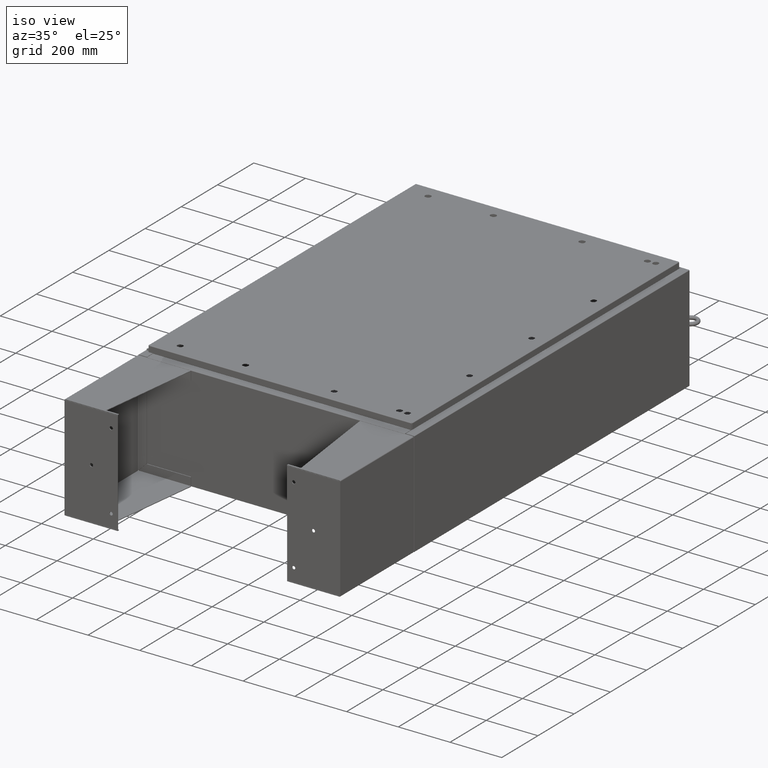
[diagram: clean part render]
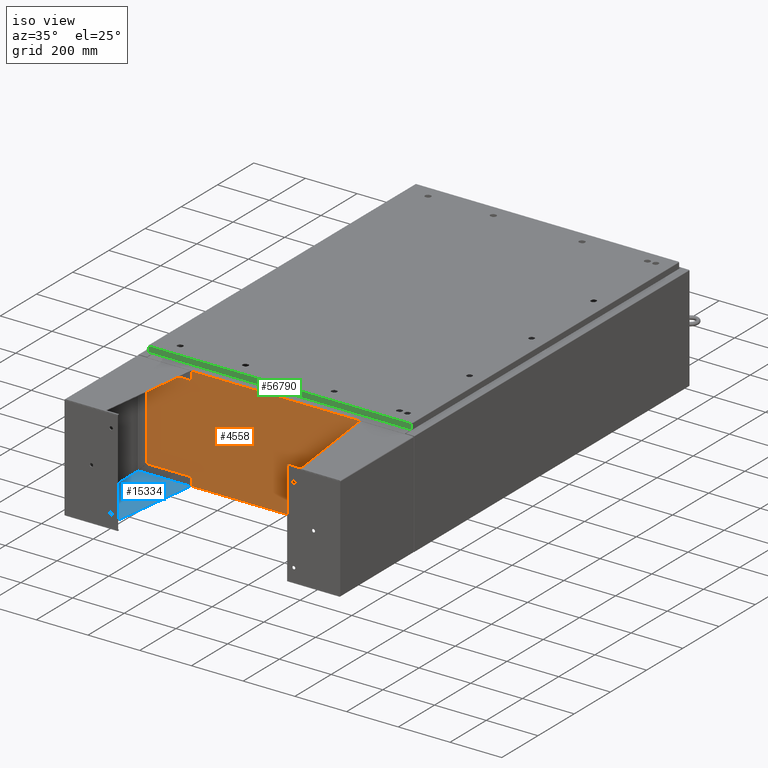
[diagram: same view with three faces highlighted in distinct colors, each labeled with its STEP entity id]
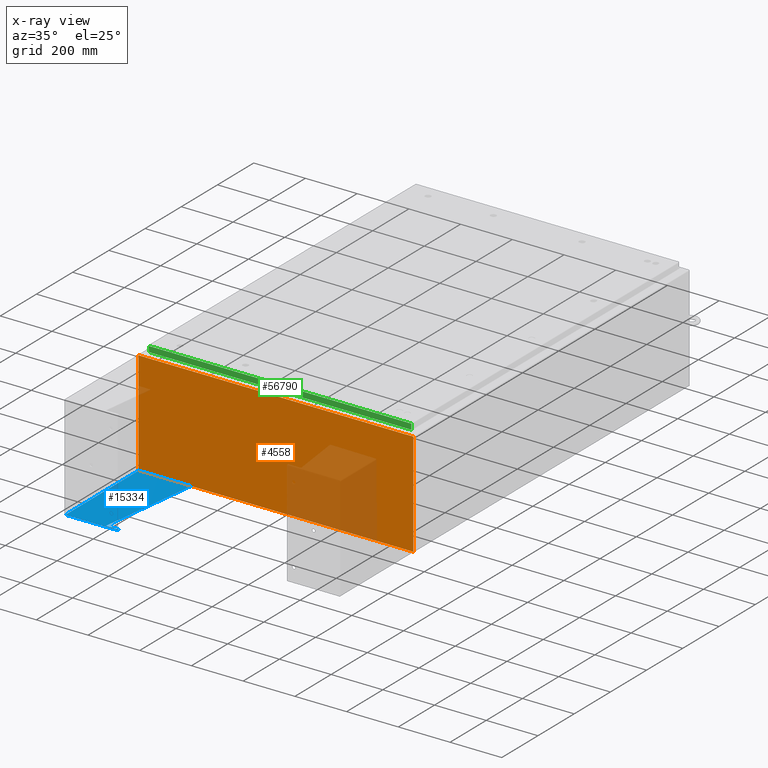
[diagram: x-ray of the same camera — body ghosted, the three highlighted faces saturated]
A machine part, iso view with three faces highlighted in distinct colors.
The next image is the same camera in x-ray (body ghosted, the three faces saturated) — at least one of them is partly hidden behind the body in this view.
Their STEP definitions:

[orange] entity #4558 — the highlighted planar face has unit normal (-0, 1, -0).
#635 = VERTEX_POINT ( 'NONE', #49091 ) ;
#676 = CARTESIAN_POINT ( 'NONE',  ( -19.67455000000000400, 0.0000000000000000000, 7.925300000000001800 ) ) ;
#843 = LINE ( 'NONE', #21098, #52582 ) ;
#2408 = VERTEX_POINT ( 'NONE', #6187 ) ;
#3503 = EDGE_CURVE ( 'NONE', #2408, #59213, #843, .T. ) ;
#3987 = PLANE ( 'NONE',  #25245 ) ;
#4558 = ADVANCED_FACE ( 'NONE', ( #53187 ), #3987, .F. ) ;
#4696 = VERTEX_POINT ( 'NONE', #27846 ) ;
#5703 = DIRECTION ( 'NONE',  ( 1.000000000000000000, 0.0000000000000000000, -2.611047864225854000E-017 ) ) ;
#6187 = CARTESIAN_POINT ( 'NONE',  ( 19.67454999999998200, 0.0000000000000000000, 7.925300000000000900 ) ) ;
#6221 = EDGE_LOOP ( 'NONE', ( #33745, #45854, #34975, #47117, #20581, #32010, #10720, #10058, #54928, #59012, #46620, #35428 ) ) ;
#6454 = LINE ( 'NONE', #39146, #56666 ) ;
#6976 = DIRECTION ( 'NONE',  ( 4.340572780400098900E-014, 0.0000000000000000000, -1.000000000000000000 ) ) ;
#7553 = VERTEX_POINT ( 'NONE', #51244 ) ;
#8736 = CARTESIAN_POINT ( 'NONE',  ( 19.65587500000000500, 0.0000000000000000000, 7.874950000000001900 ) ) ;
#9817 = VERTEX_POINT ( 'NONE', #18366 ) ;
#10058 = ORIENTED_EDGE ( 'NONE', *, *, #46426, .T. ) ;
#10181 = EDGE_CURVE ( 'NONE', #4696, #37534, #6454, .T. ) ;
#10720 = ORIENTED_EDGE ( 'NONE', *, *, #3503, .F. ) ;
#10888 = CARTESIAN_POINT ( 'NONE',  ( -20.92530000000000400, 0.0000000000000000000, 7.925300000000001800 ) ) ;
#11082 = EDGE_CURVE ( 'NONE', #33250, #37534, #61111, .T. ) ;
#11837 = DIRECTION ( 'NONE',  ( 0.0000000000000000000, -0.0000000000000000000, -1.000000000000000000 ) ) ;
#12970 = EDGE_CURVE ( 'NONE', #635, #54100, #31905, .T. ) ;
#13600 = DIRECTION ( 'NONE',  ( 0.0000000000000000000, 0.0000000000000000000, -1.000000000000000000 ) ) ;
#13701 = CARTESIAN_POINT ( 'NONE',  ( 19.63720000000000400, 0.0000000000000000000, 0.0000000000000000000 ) ) ;
#15807 = EDGE_CURVE ( 'NONE', #41809, #7553, #54767, .T. ) ;
#16029 = CARTESIAN_POINT ( 'NONE',  ( 19.67455000000000400, 0.0000000000000000000, 7.874950000000001900 ) ) ;
#18015 = CARTESIAN_POINT ( 'NONE',  ( 20.92530000000000400, 0.0000000000000000000, 7.925300000000000900 ) ) ;
#18366 = CARTESIAN_POINT ( 'NONE',  ( -20.92530000000000400, 0.0000000000000000000, -7.925299999999997300 ) ) ;
#19823 = DIRECTION ( 'NONE',  ( 0.0000000000000000000, -1.000000000000000000, 0.0000000000000000000 ) ) ;
#20581 = ORIENTED_EDGE ( 'NONE', *, *, #23422, .F. ) ;
#20619 = DIRECTION ( 'NONE',  ( -0.0000000000000000000, -0.0000000000000000000, 1.000000000000000000 ) ) ;
#21098 = CARTESIAN_POINT ( 'NONE',  ( 19.67455000000034500, 0.0000000000000000000, 8.539881619662225600E-013 ) ) ;
#21289 = VERTEX_POINT ( 'NONE', #48877 ) ;
#21606 = CARTESIAN_POINT ( 'NONE',  ( 20.92530000000000400, 0.0000000000000000000, 7.925300000000000900 ) ) ;
#21850 = LINE ( 'NONE', #33130, #59189 ) ;
#22259 = VECTOR ( 'NONE', #26811, 39.37007874015748100 ) ;
#23422 = EDGE_CURVE ( 'NONE', #60344, #54100, #50509, .T. ) ;
#24742 = VECTOR ( 'NONE', #20619, 39.37007874015748100 ) ;
#24987 = CARTESIAN_POINT ( 'NONE',  ( -19.63720000000000400, -7.171100983368691200E-016, 7.912300000000001900 ) ) ;
#25245 = AXIS2_PLACEMENT_3D ( 'NONE', #48310, #19823, #11837 ) ;
#26811 = DIRECTION ( 'NONE',  ( 0.0000000000000000000, 0.0000000000000000000, 1.000000000000000000 ) ) ;
#27045 = EDGE_CURVE ( 'NONE', #21289, #33250, #42506, .T. ) ;
#27846 = CARTESIAN_POINT ( 'NONE',  ( -20.92530000000000400, 0.0000000000000000000, 7.925300000000001800 ) ) ;
#28000 = DIRECTION ( 'NONE',  ( -0.0000000000000000000, 1.000000000000000000, -0.0000000000000000000 ) ) ;
#28368 = CARTESIAN_POINT ( 'NONE',  ( 19.63720000000000400, 0.0000000000000000000, 7.912300000000001900 ) ) ;
#28908 = AXIS2_PLACEMENT_3D ( 'NONE', #57213, #28000, #62094 ) ;
#30147 = CARTESIAN_POINT ( 'NONE',  ( -20.92530000000000400, 0.0000000000000000000, -7.925299999999997300 ) ) ;
#30923 = EDGE_CURVE ( 'NONE', #7553, #9817, #60137, .T. ) ;
#31905 = LINE ( 'NONE', #24987, #33565 ) ;
#32010 = ORIENTED_EDGE ( 'NONE', *, *, #40624, .F. ) ;
#33130 = CARTESIAN_POINT ( 'NONE',  ( -19.63720000000000400, -0.0000000000000000000, 0.0000000000000000000 ) ) ;
#33250 = VERTEX_POINT ( 'NONE', #34976 ) ;
#33565 = VECTOR ( 'NONE', #41754, 39.37007874015748100 ) ;
#33745 = ORIENTED_EDGE ( 'NONE', *, *, #11082, .F. ) ;
#34975 = ORIENTED_EDGE ( 'NONE', *, *, #40649, .F. ) ;
#34976 = CARTESIAN_POINT ( 'NONE',  ( -19.67455000000000400, 0.0000000000000000000, 7.874950000000001900 ) ) ;
#35428 = ORIENTED_EDGE ( 'NONE', *, *, #10181, .T. ) ;
#37534 = VERTEX_POINT ( 'NONE', #676 ) ;
#37917 = DIRECTION ( 'NONE',  ( 0.0000000000000000000, 0.0000000000000000000, 1.000000000000000000 ) ) ;
#38032 = DIRECTION ( 'NONE',  ( 0.0000000000000000000, 0.0000000000000000000, -1.000000000000000000 ) ) ;
#39146 = CARTESIAN_POINT ( 'NONE',  ( -20.92530000000000400, 0.0000000000000000000, 7.925300000000001800 ) ) ;
#39434 = CARTESIAN_POINT ( 'NONE',  ( -20.92530000000000400, 0.0000000000000000000, 7.925300000000001800 ) ) ;
#40250 = VECTOR ( 'NONE', #53026, 39.37007874015748100 ) ;
#40624 = EDGE_CURVE ( 'NONE', #59213, #60344, #49274, .T. ) ;
#40649 = EDGE_CURVE ( 'NONE', #635, #21289, #21850, .T. ) ;
#41316 = CARTESIAN_POINT ( 'NONE',  ( -19.67455000000000400, -0.0000000000000000000, 0.0000000000000000000 ) ) ;
#41754 = DIRECTION ( 'NONE',  ( 1.000000000000000000, 0.0000000000000000000, 0.0000000000000000000 ) ) ;
#41809 = VERTEX_POINT ( 'NONE', #18015 ) ;
#42274 = LINE ( 'NONE', #10888, #24742 ) ;
#42506 = CIRCLE ( 'NONE', #28908, 0.01867499999999949400 ) ;
#42737 = DIRECTION ( 'NONE',  ( -0.0000000000000000000, 1.000000000000000000, -0.0000000000000000000 ) ) ;
#44055 = DIRECTION ( 'NONE',  ( 1.000000000000000000, 0.0000000000000000000, -2.611047864225854000E-017 ) ) ;
#44642 = CARTESIAN_POINT ( 'NONE',  ( 19.63720000000000400, 0.0000000000000000000, 7.874950000000001900 ) ) ;
#44844 = DIRECTION ( 'NONE',  ( -1.000000000000000000, -0.0000000000000000000, -0.0000000000000000000 ) ) ;
#45446 = VECTOR ( 'NONE', #5703, 39.37007874015748100 ) ;
#45657 = VECTOR ( 'NONE', #44844, 39.37007874015748100 ) ;
#45854 = ORIENTED_EDGE ( 'NONE', *, *, #27045, .F. ) ;
#46192 = AXIS2_PLACEMENT_3D ( 'NONE', #8736, #42737, #13600 ) ;
#46426 = EDGE_CURVE ( 'NONE', #2408, #41809, #58403, .T. ) ;
#46620 = ORIENTED_EDGE ( 'NONE', *, *, #48131, .T. ) ;
#47117 = ORIENTED_EDGE ( 'NONE', *, *, #12970, .T. ) ;
#48131 = EDGE_CURVE ( 'NONE', #9817, #4696, #42274, .T. ) ;
#48310 = CARTESIAN_POINT ( 'NONE',  ( 0.0000000000000000000, 0.0000000000000000000, 0.0000000000000000000 ) ) ;
#48877 = CARTESIAN_POINT ( 'NONE',  ( -19.63720000000000400, -0.0000000000000000000, 7.874950000000001900 ) ) ;
#49091 = CARTESIAN_POINT ( 'NONE',  ( -19.63720000000000400, -7.171100983368691200E-016, 7.912300000000001900 ) ) ;
#49274 = CIRCLE ( 'NONE', #46192, 0.01867499999999949400 ) ;
#50509 = LINE ( 'NONE', #13701, #52032 ) ;
#51244 = CARTESIAN_POINT ( 'NONE',  ( 20.92530000000000400, 0.0000000000000000000, -7.925299999999997300 ) ) ;
#52032 = VECTOR ( 'NONE', #37917, 39.37007874015748100 ) ;
#52582 = VECTOR ( 'NONE', #6976, 39.37007874015748100 ) ;
#53026 = DIRECTION ( 'NONE',  ( 0.0000000000000000000, 0.0000000000000000000, -1.000000000000000000 ) ) ;
#53187 = FACE_OUTER_BOUND ( 'NONE', #6221, .T. ) ;
#54100 = VERTEX_POINT ( 'NONE', #28368 ) ;
#54767 = LINE ( 'NONE', #21606, #40250 ) ;
#54928 = ORIENTED_EDGE ( 'NONE', *, *, #15807, .T. ) ;
#56666 = VECTOR ( 'NONE', #44055, 39.37007874015748100 ) ;
#57213 = CARTESIAN_POINT ( 'NONE',  ( -19.65587500000000500, 0.0000000000000000000, 7.874950000000001900 ) ) ;
#58403 = LINE ( 'NONE', #39434, #45446 ) ;
#59012 = ORIENTED_EDGE ( 'NONE', *, *, #30923, .T. ) ;
#59189 = VECTOR ( 'NONE', #38032, 39.37007874015748100 ) ;
#59213 = VERTEX_POINT ( 'NONE', #16029 ) ;
#60137 = LINE ( 'NONE', #30147, #45657 ) ;
#60344 = VERTEX_POINT ( 'NONE', #44642 ) ;
#61111 = LINE ( 'NONE', #41316, #22259 ) ;
#62094 = DIRECTION ( 'NONE',  ( 0.0000000000000000000, 0.0000000000000000000, -1.000000000000000000 ) ) ;

[blue] entity #15334 — the highlighted planar face has unit normal (-0, -0, 1).
#18 = VERTEX_POINT ( 'NONE', #26604 ) ;
#1375 = CARTESIAN_POINT ( 'NONE',  ( 7.896000000000028300, 7.857000000000002000, 8.001000000000015400 ) ) ;
#1520 = VECTOR ( 'NONE', #42992, 39.37007874015748100 ) ;
#7662 = VERTEX_POINT ( 'NONE', #58581 ) ;
#8188 = EDGE_LOOP ( 'NONE', ( #12650, #55027, #47482, #57591, #23042, #49854 ) ) ;
#8284 = DIRECTION ( 'NONE',  ( -1.000000000000000000, 0.0000000000000000000, 3.550958521948298200E-015 ) ) ;
#8359 = DIRECTION ( 'NONE',  ( 3.550958521948298200E-015, 0.0000000000000000000, 1.000000000000000000 ) ) ;
#10917 = VECTOR ( 'NONE', #22510, 39.37007874015748900 ) ;
#11303 = EDGE_CURVE ( 'NONE', #40472, #18, #35954, .T. ) ;
#12650 = ORIENTED_EDGE ( 'NONE', *, *, #11303, .F. ) ;
#12935 = VECTOR ( 'NONE', #49120, 39.37007874015748100 ) ;
#14409 = LINE ( 'NONE', #58129, #1520 ) ;
#14468 = FACE_OUTER_BOUND ( 'NONE', #8188, .T. ) ;
#15334 = ADVANCED_FACE ( 'NONE', ( #14468 ), #49023, .T. ) ;
#15823 = EDGE_CURVE ( 'NONE', #49290, #59758, #14409, .T. ) ;
#17010 = EDGE_CURVE ( 'NONE', #7662, #49290, #54299, .T. ) ;
#22066 = VERTEX_POINT ( 'NONE', #53121 ) ;
#22510 = DIRECTION ( 'NONE',  ( 4.399772607369799400E-016, 0.9922942345449394800, 0.1239038017531047700 ) ) ;
#22989 = VECTOR ( 'NONE', #54993, 39.37007874015748100 ) ;
#23042 = ORIENTED_EDGE ( 'NONE', *, *, #17010, .F. ) ;
#23602 = CARTESIAN_POINT ( 'NONE',  ( 7.896000000000028300, -7.999999999999999100, 8.001000000000015400 ) ) ;
#25663 = LINE ( 'NONE', #40623, #62997 ) ;
#26604 = CARTESIAN_POINT ( 'NONE',  ( 7.896000000000028300, -7.999999999999999100, 8.001000000000015400 ) ) ;
#29220 = CARTESIAN_POINT ( 'NONE',  ( 7.896000000000028300, -7.999999999999999100, 8.001000000000015400 ) ) ;
#29643 = CARTESIAN_POINT ( 'NONE',  ( 7.895999999999999900, 7.857000000000002000, 0.03900000000001561900 ) ) ;
#30842 = EDGE_CURVE ( 'NONE', #18, #7662, #51759, .T. ) ;
#35954 = LINE ( 'NONE', #23602, #22989 ) ;
#36589 = CARTESIAN_POINT ( 'NONE',  ( 7.896000000000025700, -7.749999999999999100, 8.001000000000024300 ) ) ;
#37704 = CARTESIAN_POINT ( 'NONE',  ( 7.895999999999999900, -7.999999999999999100, 0.03900000000001561900 ) ) ;
#40329 = EDGE_CURVE ( 'NONE', #40472, #22066, #25663, .T. ) ;
#40472 = VERTEX_POINT ( 'NONE', #36589 ) ;
#40623 = CARTESIAN_POINT ( 'NONE',  ( 7.896000000000029200, -7.749999999999999100, 8.001000000000024300 ) ) ;
#42992 = DIRECTION ( 'NONE',  ( 0.0000000000000000000, 0.0000000000000000000, 1.000000000000000000 ) ) ;
#44394 = VECTOR ( 'NONE', #61363, 39.37007874015748100 ) ;
#45537 = DIRECTION ( 'NONE',  ( -3.550958521948299800E-015, 0.0000000000000000000, -1.000000000000000000 ) ) ;
#47482 = ORIENTED_EDGE ( 'NONE', *, *, #51631, .T. ) ;
#48196 = LINE ( 'NONE', #56593, #10917 ) ;
#49023 = PLANE ( 'NONE',  #52432 ) ;
#49120 = DIRECTION ( 'NONE',  ( -3.550958521948298200E-015, -0.0000000000000000000, -1.000000000000000000 ) ) ;
#49290 = VERTEX_POINT ( 'NONE', #29643 ) ;
#49854 = ORIENTED_EDGE ( 'NONE', *, *, #30842, .F. ) ;
#51631 = EDGE_CURVE ( 'NONE', #22066, #59758, #48196, .T. ) ;
#51759 = LINE ( 'NONE', #54019, #12935 ) ;
#52432 = AXIS2_PLACEMENT_3D ( 'NONE', #29220, #8284, #8359 ) ;
#53121 = CARTESIAN_POINT ( 'NONE',  ( 7.896000000000022100, -7.749999999999999100, 6.052216497445943600 ) ) ;
#54019 = CARTESIAN_POINT ( 'NONE',  ( 7.895999999999999900, -7.999999999999999100, 1.529834876451987200E-014 ) ) ;
#54299 = LINE ( 'NONE', #37704, #44394 ) ;
#54993 = DIRECTION ( 'NONE',  ( -0.0000000000000000000, -1.000000000000000000, -0.0000000000000000000 ) ) ;
#55027 = ORIENTED_EDGE ( 'NONE', *, *, #40329, .T. ) ;
#56593 = CARTESIAN_POINT ( 'NONE',  ( 7.896000000000019400, -7.749999999999999100, 6.052216497445943600 ) ) ;
#57591 = ORIENTED_EDGE ( 'NONE', *, *, #15823, .F. ) ;
#58129 = CARTESIAN_POINT ( 'NONE',  ( 7.896000000000014100, 7.857000000000001100, 0.03900000000001561900 ) ) ;
#58581 = CARTESIAN_POINT ( 'NONE',  ( 7.895999999999999900, -7.999999999999999100, 0.03900000000001561900 ) ) ;
#59758 = VERTEX_POINT ( 'NONE', #1375 ) ;
#61363 = DIRECTION ( 'NONE',  ( 0.0000000000000000000, 1.000000000000000000, 0.0000000000000000000 ) ) ;
#62997 = VECTOR ( 'NONE', #45537, 39.37007874015748100 ) ;

[green] entity #56790 — the highlighted planar face has unit normal (-0, 1, -0).
#500 = ORIENTED_EDGE ( 'NONE', *, *, #24586, .F. ) ;
#1710 = VERTEX_POINT ( 'NONE', #62650 ) ;
#3223 = ORIENTED_EDGE ( 'NONE', *, *, #17492, .F. ) ;
#4304 = ORIENTED_EDGE ( 'NONE', *, *, #21242, .T. ) ;
#8077 = DIRECTION ( 'NONE',  ( -6.202179162391781100E-031, 1.000000000000000000, -5.064839849203732200E-015 ) ) ;
#10603 = CARTESIAN_POINT ( 'NONE',  ( 20.07799999999999600, -29.09399999999999400, -0.9376999999999997600 ) ) ;
#11252 = CARTESIAN_POINT ( 'NONE',  ( -19.98915786437628100, -29.09399999999999400, -0.9376999999999948700 ) ) ;
#12731 = PLANE ( 'NONE',  #45738 ) ;
#15113 = LINE ( 'NONE', #42315, #39436 ) ;
#15659 = CARTESIAN_POINT ( 'NONE',  ( -19.98915786437627800, -29.09399999999999100, 1.476172642287448900E-013 ) ) ;
#15874 = VERTEX_POINT ( 'NONE', #40680 ) ;
#17492 = EDGE_CURVE ( 'NONE', #15874, #48303, #39712, .T. ) ;
#18356 = FACE_OUTER_BOUND ( 'NONE', #45595, .T. ) ;
#21242 = EDGE_CURVE ( 'NONE', #15874, #30976, #44350, .T. ) ;
#24538 = DIRECTION ( 'NONE',  ( 1.000000000000000000, 6.202179162391782000E-031, -3.205446364406161000E-045 ) ) ;
#24586 = EDGE_CURVE ( 'NONE', #1710, #30976, #29782, .T. ) ;
#29782 = LINE ( 'NONE', #10603, #54173 ) ;
#30976 = VERTEX_POINT ( 'NONE', #11252 ) ;
#36584 = CARTESIAN_POINT ( 'NONE',  ( 19.98915786437626400, -29.09399999999999100, -0.08769999999999550400 ) ) ;
#37431 = DIRECTION ( 'NONE',  ( -0.0000000000000000000, -5.064839849203732200E-015, -1.000000000000000000 ) ) ;
#39436 = VECTOR ( 'NONE', #37431, 39.37007874015748100 ) ;
#39712 = LINE ( 'NONE', #49326, #51182 ) ;
#39913 = DIRECTION ( 'NONE',  ( -1.000000000000000000, 8.758115402030108600E-047, 1.224555829414202900E-016 ) ) ;
#40680 = CARTESIAN_POINT ( 'NONE',  ( -19.98915786437628100, -29.09399999999999100, -0.08769999999999550400 ) ) ;
#42066 = DIRECTION ( 'NONE',  ( 0.0000000000000000000, 5.064839849203732200E-015, 1.000000000000000000 ) ) ;
#42315 = CARTESIAN_POINT ( 'NONE',  ( 19.98915786437626400, -29.09399999999999100, -0.07469999999999962800 ) ) ;
#44350 = LINE ( 'NONE', #15659, #47393 ) ;
#45523 = EDGE_CURVE ( 'NONE', #48303, #1710, #15113, .T. ) ;
#45595 = EDGE_LOOP ( 'NONE', ( #3223, #4304, #500, #48427 ) ) ;
#45738 = AXIS2_PLACEMENT_3D ( 'NONE', #61445, #8077, #42066 ) ;
#47393 = VECTOR ( 'NONE', #56563, 39.37007874015748100 ) ;
#48303 = VERTEX_POINT ( 'NONE', #36584 ) ;
#48427 = ORIENTED_EDGE ( 'NONE', *, *, #45523, .F. ) ;
#49326 = CARTESIAN_POINT ( 'NONE',  ( 20.07799999999999600, -29.09399999999999100, -0.08769999999999550400 ) ) ;
#51182 = VECTOR ( 'NONE', #24538, 39.37007874015748100 ) ;
#54173 = VECTOR ( 'NONE', #39913, 39.37007874015748100 ) ;
#56563 = DIRECTION ( 'NONE',  ( 0.0000000000000000000, -5.064839849203732200E-015, -1.000000000000000000 ) ) ;
#56790 = ADVANCED_FACE ( 'NONE', ( #18356 ), #12731, .F. ) ;
#61445 = CARTESIAN_POINT ( 'NONE',  ( 1.804462005506264300E-029, -29.09399999999999100, 1.476172642287448900E-013 ) ) ;
#62650 = CARTESIAN_POINT ( 'NONE',  ( 19.98915786437626400, -29.09399999999999400, -0.9376999999999997600 ) ) ;